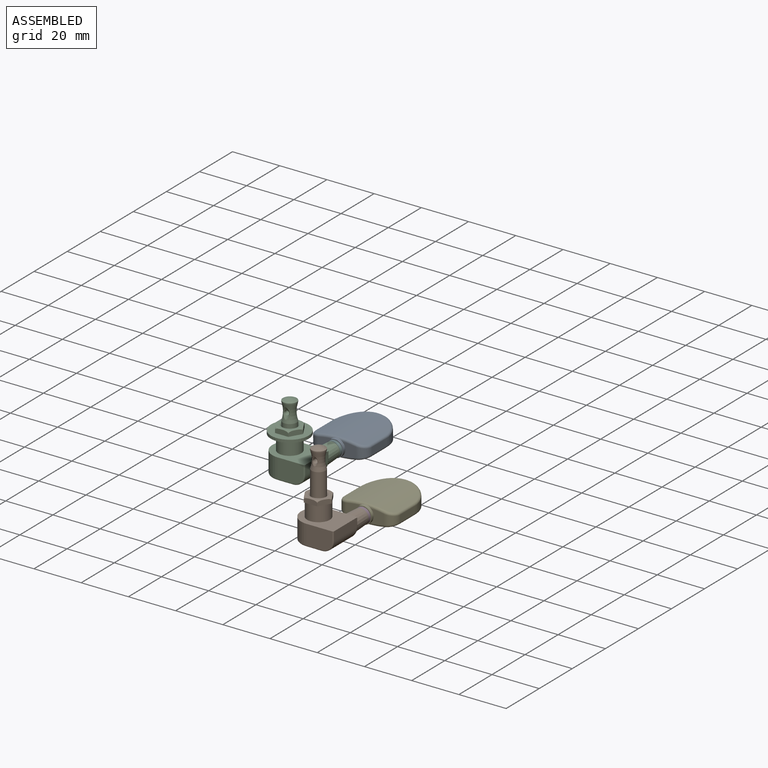
[diagram: assembled view]
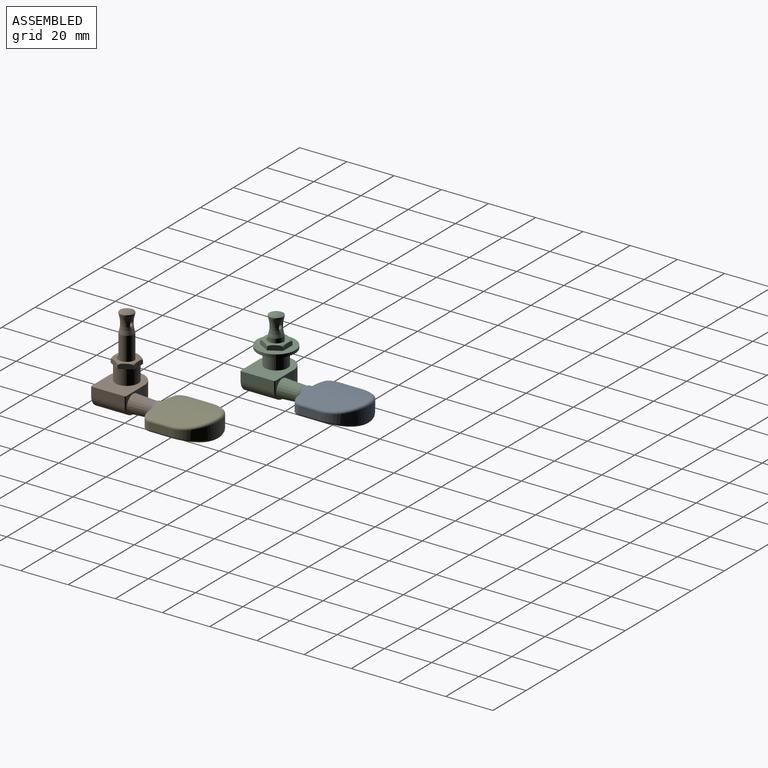
[diagram: assembled view, second angle]
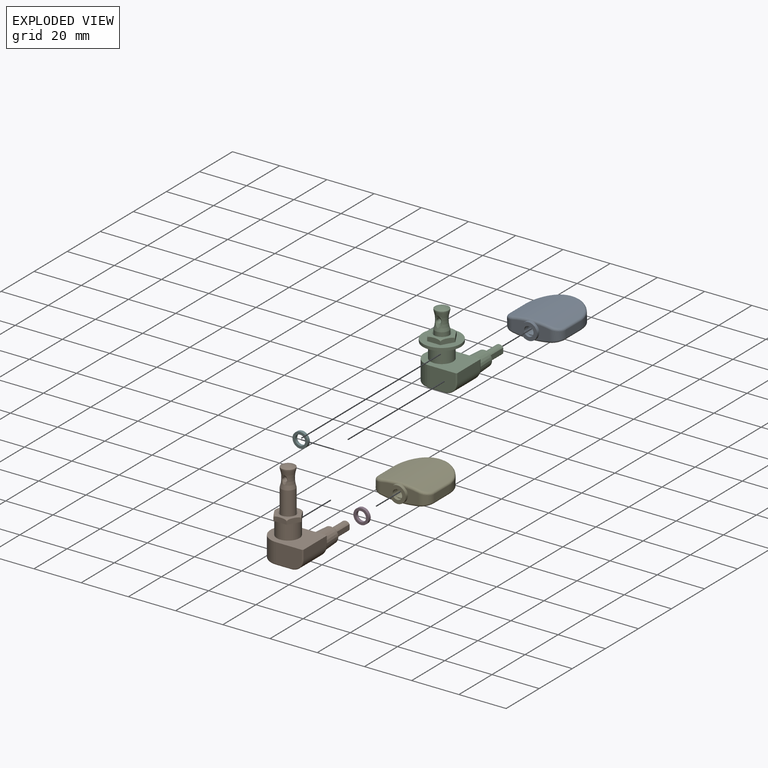
[diagram: exploded view]
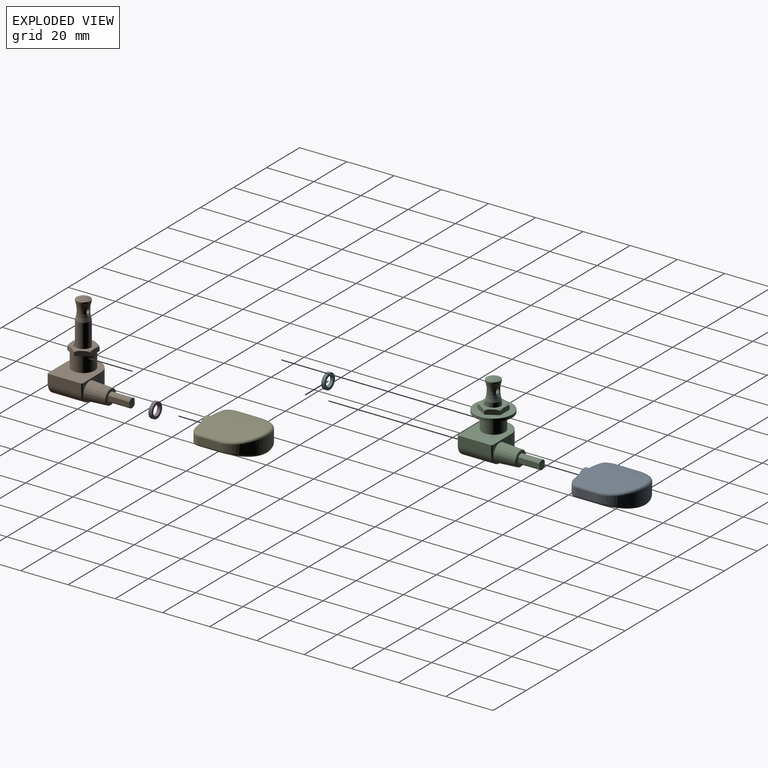
[diagram: exploded view, second angle]
ASSEMBLY  parts=6 mates=4
PART A: 35 faces, bbox 9.4x26.3x30.3 mm
  f0: plane 5.88x5.69mm, normal (0,-1,0), area 24.4mm2, adj f10,f17,f23,f27
  f1: bspline ~0.95x0.9mm, area 0mm2, adj f4,f20,f24
  f2: bspline ~0.95x0.9mm, area 0mm2, adj f3,f12,f16
  f3: cylinder r=43.2mm len=23mm, axis (0,-1,0), area 465.6mm2, adj f2,f12,f13,f15,f16,f17,f18
  f4: cylinder r=43.2mm len=23.03mm, axis (0,-1,0), area 465.6mm2, adj f1,f19,f20,f21,f23,f24,f25
  f5: plane 9.11x2.88mm, normal (0,0,1), area 26.2mm2, adj f8,f10,f14,f16,f22,f24
  f6: plane 9x2.88mm, normal (0,0,-1), area 25.9mm2, adj f9,f11,f13,f19
  f7: plane 5.88x5.69mm, normal (0,-1,0), area 24.4mm2, adj f11,f17,f23,f27
  f8: plane 2.37x0mm, normal (0,1,0.09), area 0mm2, adj f5,f9,f14,f22
  f9: cylinder r=12mm len=24mm, axis (-1,0,0), area 163.6mm2, adj f6,f8,f12,f14,f20,f22
  f10: cylinder r=4mm len=4.27mm, axis (1,0,0), area 22.5mm2, adj f0,f5,f18,f25
  f11: cylinder r=4mm len=4.27mm, axis (-1,0,0), area 22.5mm2, adj f6,f7,f15,f21
  f12: bspline ~24x12.88mm, area 53.5mm2, adj f2,f3,f9,f13,f14
  f13: cylinder r=1mm len=9mm, axis (0,-1,0), area 11.8mm2, adj f3,f6,f12,f15
  f14: bspline ~9.11x3.93mm, area 0mm2, adj f5,f8,f9,f12,f16
  f15: bspline ~4.9x4.88mm, area 8.1mm2, adj f3,f11,f13,f17
  f16: cylinder r=1mm len=9.08mm, axis (0,-1,0), area 11.3mm2, adj f2,f3,f5,f14,f18
  f17: torus R=42.2mm, axis (0,1,0), area 23.7mm2, adj f0,f3,f7,f15,f18,f27
  f18: bspline ~4.9x4.88mm, area 8.1mm2, adj f3,f10,f16,f17
  f19: cylinder r=1mm len=9mm, axis (0,-1,0), area 11.8mm2, adj f4,f6,f20,f21
  f20: bspline ~24x12.88mm, area 53.5mm2, adj f1,f4,f9,f19,f22
  f21: bspline ~4.9x4.88mm, area 8.1mm2, adj f4,f11,f19,f23
  f22: bspline ~9.11x3.93mm, area 0mm2, adj f5,f8,f9,f20,f24
  f23: torus R=42.2mm, axis (0,1,0), area 23.7mm2, adj f0,f4,f7,f21,f25,f27
  f24: cylinder r=1mm len=9.08mm, axis (0,-1,0), area 11.3mm2, adj f1,f4,f5,f22,f25
  f25: bspline ~4.9x4.88mm, area 8.1mm2, adj f4,f10,f23,f24
  f26: cylinder r=2.02mm len=4.05mm, axis (0,1,0), area 16.5mm2, adj f28,f29
  f27: cylinder r=3.55mm len=7.1mm, axis (0,1,0), area 29mm2, adj f0,f7,f17,f23,f28
  f28: plane 7.1x7.1mm, normal (0,-1,0), area 26.7mm2, adj f26,f27
  f29: plane 4.05x4.05mm, normal (0,-1,0), area 2.1mm2, adj f26,f30,f31,f32,f33
  f30: cylinder r=1.93mm len=7.6mm, axis (0,1,0), area 29.4mm2, adj f29,f32,f33,f34
  f31: cylinder r=1.93mm len=7.6mm, axis (0,1,0), area 29.4mm2, adj f29,f32,f33,f34
  f32: plane 7.6x2.06mm, normal (-1,0,0), area 15.7mm2, adj f29,f30,f31,f34
  f33: plane 7.6x2.06mm, normal (1,0,0), area 15.7mm2, adj f29,f30,f31,f34
  f34: plane 3.85x3.25mm, normal (0,-1,0), area 10.8mm2, adj f30,f31,f32,f33
PART B: 40 faces, bbox 19.8x33.3x39.5 mm
  f0: cylinder r=1.93mm len=8.9mm, axis (0,1,0), area 34.4mm2, adj f2,f30,f31,f32
  f1: cylinder r=1.93mm len=8.9mm, axis (0,1,0), area 34.4mm2, adj f2,f30,f31,f32
  f2: plane 3.85x3.25mm, normal (0,1,0), area 10.8mm2, adj f0,f1,f31,f32
  f3: torus R=14.06mm, axis (0,0,-1), area 107.5mm2, adj f4,f17,f18,f19
  f4: cylinder r=2.95mm len=10.23mm, axis (0,0,1), area 189.5mm2, adj f3,f6
  f5: plane 9.3x9.3mm, normal (0,0,1), area 30.9mm2, adj f6,f7
  f6: cone r=3.43mm half-angle=45deg, axis (0,0,1), area 13.7mm2, adj f4,f5
  f7: torus R=4.65mm, axis (0,0,-1), area 16.5mm2, adj f5,f8,f9,f10,f11,f12,f13
  f8: plane 4.89x2.82mm, normal (-0.87,0.5,0), area 10.8mm2, adj f7,f9,f13,f15
  f9: plane 5.65x2.07mm, normal (0,1,0), area 10.8mm2, adj f7,f8,f10,f15
  f10: plane 4.89x2.82mm, normal (0.87,0.5,0), area 10.8mm2, adj f7,f9,f11,f15
  f11: plane 4.89x2.82mm, normal (0.87,-0.5,0), area 10.8mm2, adj f7,f10,f12,f15
  f12: plane 5.65x2.07mm, normal (0,-1,0), area 10.8mm2, adj f7,f11,f13,f15
  f13: plane 4.89x2.82mm, normal (-0.87,-0.5,0), area 10.8mm2, adj f7,f8,f12,f15
  f14: cylinder r=4.8mm len=9.6mm, axis (0,0,1), area 194.7mm2, adj f15,f26
  f15: plane 11.29x9.78mm, normal (0,0,-1), area 10.4mm2, adj f8,f9,f10,f11,f12,f13,f14
  f16: sphere r=5.66mm, area 29.5mm2, adj f17
  f17: cylinder r=2.95mm len=5.9mm, axis (0,0,1), area 8.7mm2, adj f3,f16
  f18: cone r=0mm half-angle=60.9deg, axis (0,1,0), area 3.7mm2, adj f3,f20
  f19: cone r=0mm half-angle=60.9deg, axis (0,-1,0), area 3.7mm2, adj f3,f20
  f20: cylinder r=1mm len=4.03mm, axis (0,-1,0), area 25.3mm2, adj f18,f19
  f21: cylinder r=7.38mm len=14.75mm, axis (0,0,1), area 192.3mm2, adj f22,f24,f26,f36
  f22: plane 10.93x8.3mm, normal (0,1,0), area 42.7mm2, adj f21,f26,f28,f37,f38,f39
  f23: plane 13.75x3.8mm, normal (1,0,0), area 52.2mm2, adj f26,f27,f33,f37
  f24: plane 10.93x8.3mm, normal (0,-1,0), area 86.3mm2, adj f21,f26,f33,f34,f35
  f25: plane 13.75x13.3mm, normal (0,0,-1), area 162.6mm2, adj f27,f35,f36,f38
  f26: plane 18.8x14.75mm, normal (0,0,1), area 181.5mm2, adj f14,f21,f22,f23,f24,f33,f37
  f27: cylinder r=5mm len=13.75mm, axis (0,1,0), area 108mm2, adj f23,f25,f34,f39
  f28: cone r=3.24mm half-angle=3.2deg, axis (0,-1,0), area 191mm2, adj f22,f29
  f29: torus R=2.94mm, axis (0,1,0), area 8.9mm2, adj f28,f30
  f30: plane 5.88x5.88mm, normal (0,1,0), area 16.4mm2, adj f0,f1,f29,f31,f32
  f31: plane 8.9x2.06mm, normal (1,0,0), area 18.4mm2, adj f0,f1,f2,f30
  f32: plane 8.9x2.06mm, normal (-1,0,0), area 18.4mm2, adj f0,f1,f2,f30
  f33: cylinder r=0.5mm len=3.8mm, axis (0,0,-1), area 3mm2, adj f23,f24,f26,f34
  f34: torus R=4.5mm, axis (0,-1,0), area 5.9mm2, adj f24,f27,f33,f35
  f35: cylinder r=0.5mm len=6.43mm, axis (1,0,0), area 5mm2, adj f24,f25,f34,f36
  f36: torus R=6.88mm, axis (0,0,-1), area 17.7mm2, adj f21,f25,f35,f38
  f37: cylinder r=0.5mm len=3.8mm, axis (0,0,1), area 3mm2, adj f22,f23,f26,f39
  f38: cylinder r=0.5mm len=6.43mm, axis (-1,0,0), area 5mm2, adj f22,f25,f36,f39
  f39: torus R=4.5mm, axis (0,-1,0), area 5.9mm2, adj f22,f27,f37,f38
PART C: 42 faces, bbox 19.8x33.3x32.5 mm
  f0: cylinder r=1.93mm len=8.9mm, axis (0,1,0), area 34.4mm2, adj f2,f13,f14,f15
  f1: cylinder r=1.93mm len=8.9mm, axis (0,1,0), area 34.4mm2, adj f2,f13,f14,f15
  f2: plane 3.85x3.25mm, normal (0,1,0), area 10.8mm2, adj f0,f1,f14,f15
  f3: cylinder r=4.8mm len=9.6mm, axis (0,0,1), area 194.7mm2, adj f9,f23
  f4: cylinder r=7.38mm len=14.75mm, axis (0,0,1), area 192.3mm2, adj f5,f7,f9,f19
  f5: plane 10.93x8.3mm, normal (0,1,0), area 42.7mm2, adj f4,f9,f11,f20,f21,f22
  f6: plane 13.75x3.8mm, normal (1,0,0), area 52.2mm2, adj f9,f10,f16,f20
  f7: plane 10.93x8.3mm, normal (0,-1,0), area 86.3mm2, adj f4,f9,f16,f17,f18
  f8: plane 13.75x13.3mm, normal (0,0,-1), area 162.6mm2, adj f10,f18,f19,f21
  f9: plane 18.8x14.75mm, normal (0,0,1), area 181.5mm2, adj f3,f4,f5,f6,f7,f16,f20
  f10: cylinder r=5mm len=13.75mm, axis (0,1,0), area 108mm2, adj f6,f8,f17,f22
  f11: cone r=3.24mm half-angle=3.2deg, axis (0,-1,0), area 191mm2, adj f5,f12
  f12: torus R=2.94mm, axis (0,1,0), area 8.9mm2, adj f11,f13
  f13: plane 5.88x5.88mm, normal (0,1,0), area 16.4mm2, adj f0,f1,f12,f14,f15
  f14: plane 8.9x2.06mm, normal (1,0,0), area 18.4mm2, adj f0,f1,f2,f13
  f15: plane 8.9x2.06mm, normal (-1,0,0), area 18.4mm2, adj f0,f1,f2,f13
  f16: cylinder r=0.5mm len=3.8mm, axis (0,0,-1), area 3mm2, adj f6,f7,f9,f17
  f17: torus R=4.5mm, axis (0,-1,0), area 5.9mm2, adj f7,f10,f16,f18
  f18: cylinder r=0.5mm len=6.43mm, axis (1,0,0), area 5mm2, adj f7,f8,f17,f19
  f19: torus R=6.88mm, axis (0,0,-1), area 17.7mm2, adj f4,f8,f18,f21
  f20: cylinder r=0.5mm len=3.8mm, axis (0,0,1), area 3mm2, adj f5,f6,f9,f22
  f21: cylinder r=0.5mm len=6.43mm, axis (-1,0,0), area 5mm2, adj f5,f8,f19,f22
  f22: torus R=4.5mm, axis (0,-1,0), area 5.9mm2, adj f5,f10,f20,f21
  f23: plane 16x16mm, normal (0,0,-1), area 128.7mm2, adj f3,f25
  f24: plane 16x16mm, normal (0,0,1), area 118.2mm2, adj f25,f36,f37,f38,f39,f40,f41
  f25: cylinder r=8mm len=16mm, axis (0,0,1), area 60.3mm2, adj f23,f24
  f26: sphere r=5.66mm, area 29.5mm2, adj f29
  f27: cylinder r=1mm len=3.6mm, axis (0,-1,0), area 22.6mm2, adj f28,f30
  f28: cone r=0mm half-angle=60.3deg, axis (0,1,0), area 7.3mm2, adj f27,f31
  f29: cylinder r=2.95mm len=5.9mm, axis (0,0,1), area 8.7mm2, adj f26,f31
  f30: cone r=0mm half-angle=60.3deg, axis (0,-1,0), area 7.3mm2, adj f27,f31
  f31: torus R=14.06mm, axis (0,0,-1), area 100.9mm2, adj f28,f29,f30,f32
  f32: cylinder r=2.95mm len=5.9mm, axis (0,0,1), area 37.6mm2, adj f31,f33
  f33: cone r=3.43mm half-angle=45deg, axis (0,0,1), area 13.7mm2, adj f32,f34
  f34: plane 9.3x9.3mm, normal (0,0,1), area 30.9mm2, adj f33,f35
  f35: torus R=4.65mm, axis (0,0,-1), area 16.5mm2, adj f34,f36,f37,f38,f39,f40,f41
  f36: plane 4.89x2.82mm, normal (-0.87,-0.5,0), area 10.8mm2, adj f24,f35,f37,f41
  f37: plane 5.65x2.07mm, normal (0,-1,0), area 10.8mm2, adj f24,f35,f36,f38
  f38: plane 4.89x2.82mm, normal (0.87,-0.5,0), area 10.8mm2, adj f24,f35,f37,f39
  f39: plane 4.89x2.82mm, normal (0.87,0.5,0), area 10.8mm2, adj f24,f35,f38,f40
  f40: plane 5.65x2.07mm, normal (0,1,0), area 10.8mm2, adj f24,f35,f39,f41
  f41: plane 4.89x2.82mm, normal (-0.87,0.5,0), area 10.8mm2, adj f24,f35,f36,f40
PART D: 4 faces, bbox 6.5x1.3x6.5 mm
  f0: plane 6.45x6.45mm, normal (0,-1,0), area 18.5mm2, adj f1,f3
  f1: cylinder r=2.12mm len=4.25mm, axis (0,-1,0), area 17.4mm2, adj f0,f2
  f2: plane 6.45x6.45mm, normal (0,1,0), area 18.5mm2, adj f1,f3
  f3: cylinder r=3.23mm len=6.45mm, axis (0,-1,0), area 26.3mm2, adj f0,f2
PART E: same geometry as A
PART F: same geometry as D
PLACE A rot(axis=(0,-1,0),91.4deg) t=(-26.23,31.37,-28.68)mm
PLACE B t=(9.2,-6.67,-18.71)mm fixed
PLACE C t=(-28.71,30.07,-17.46)mm fixed
PLACE D t=(9.2,-9.05,-18.71)mm
PLACE E rot(axis=(0,-1,0),89.8deg) t=(11.48,-5.65,-29.81)mm
PLACE F t=(-28.71,27.97,-17.46)mm
MATE revolute A.f30 <-> F.f1  axis (0,-1,0) through (-22,47.74,-21.86)mm
MATE fastened F.f1 <-> C.f0  axis (0,-1,0) through (-22,46.44,-21.86)mm
MATE revolute E.f30 <-> D.f1  axis (0,-1,0) through (15.91,10.72,-23.11)mm
MATE fastened D.f1 <-> B.f0  axis (0,-1,0) through (15.91,9.42,-23.11)mm
